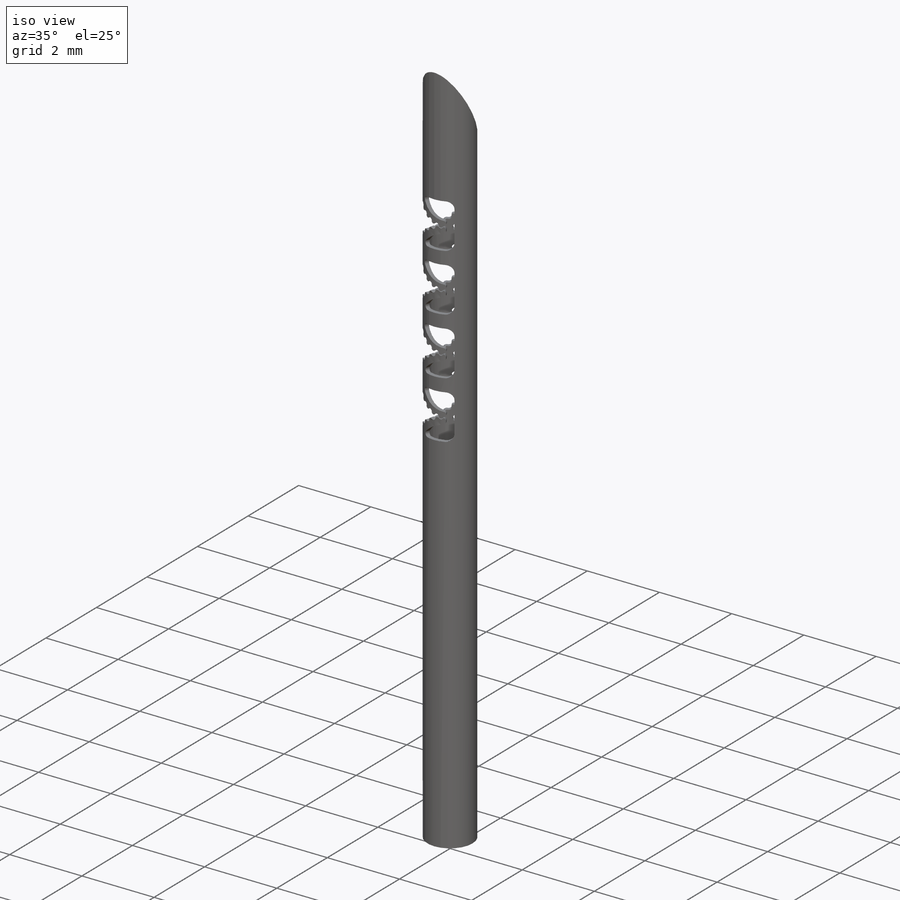
[diagram: iso view]
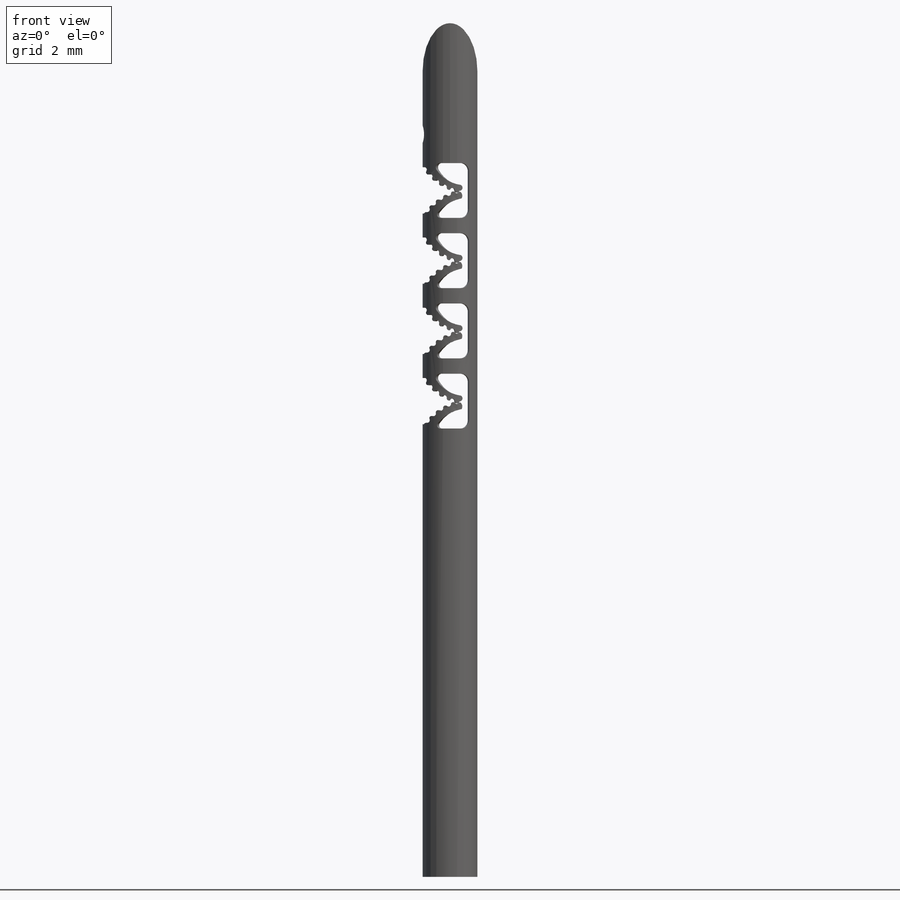
[diagram: front view]
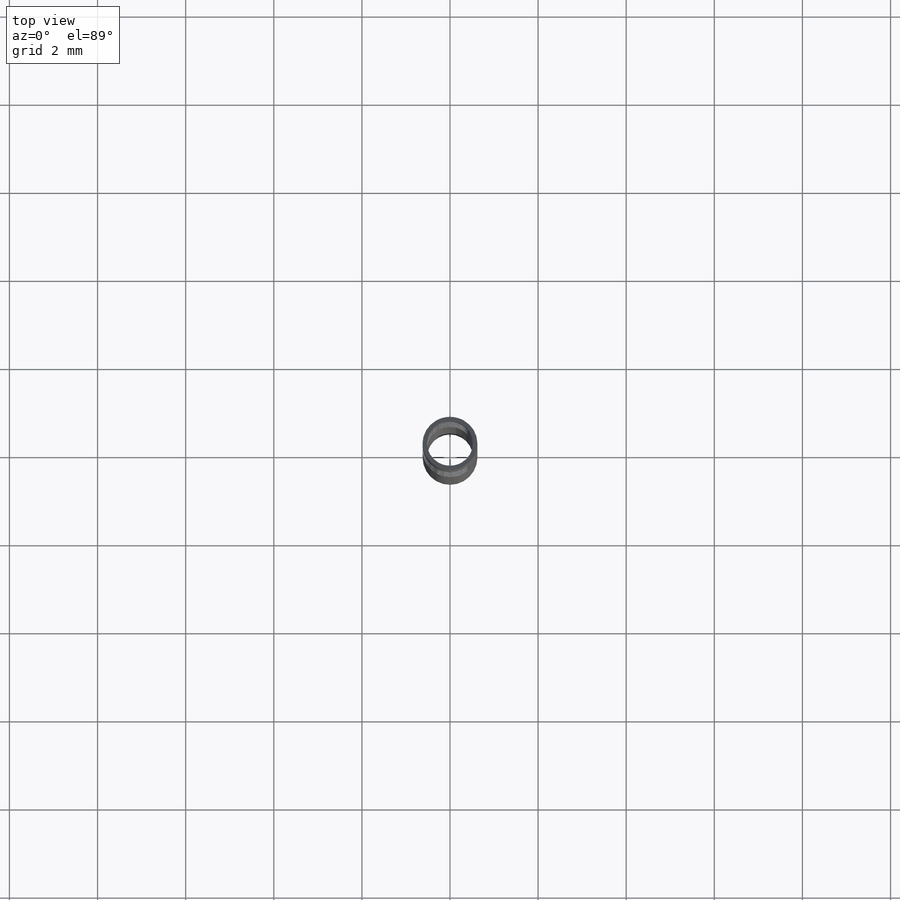
[diagram: top view]
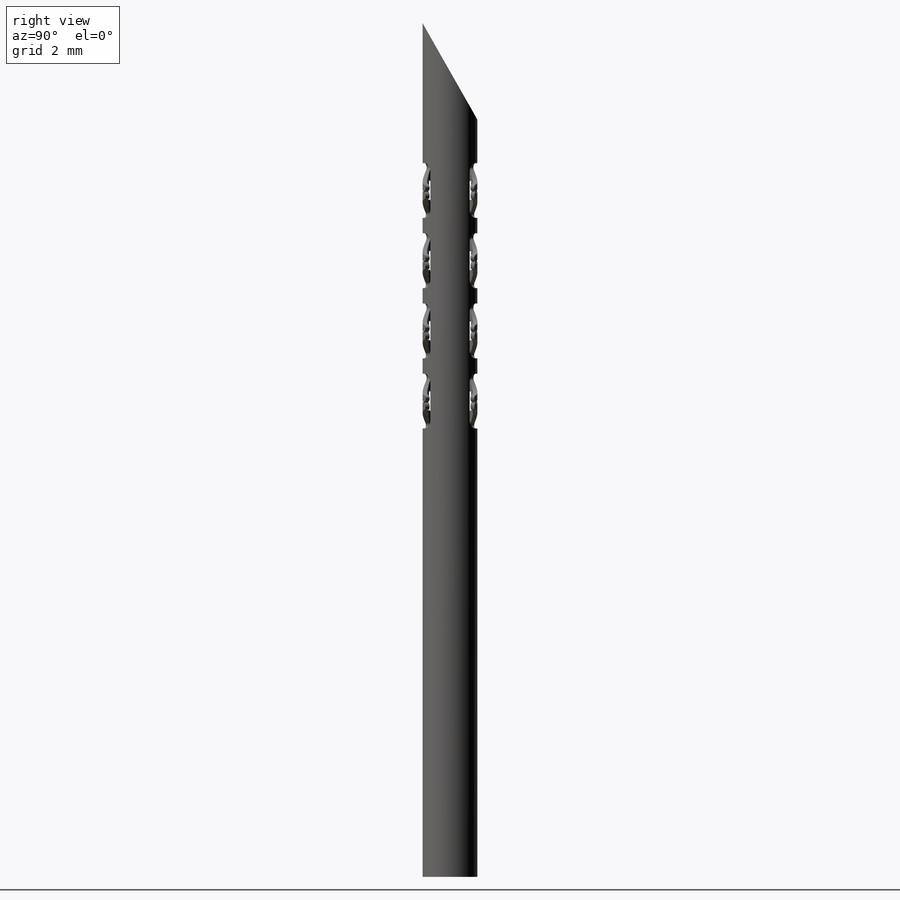
[diagram: right view]
SOLIDWORKS PART (.sldprt)
format: sldprt  version: not decoded by parser v0  size: 2,485,760 bytes
history: native  units: mm
features: sketch x15, cut_extrude x4, plane x2, fillet x2, extrude x2, helix x2, material x1, surface_op x1, mirror x1, pattern_linear x1, boolean_combine x1 (+13 scaffold rows collapsed)
feature tree (45):
  scaffold x13  (default folders/planes/origin — collapsed)
  material  "Material <not specified>"
  sketch  "Sketch1"  dims[D2=1.0412mm D1=0.1014mm]
  sketch  "Sketch7"  dims[c1.D2=~0.096809mm c1.D10=~0.378569mm c1.D5=~0.193326mm c1.D6=1.0152mm c1.D7=0.1mm c1.D8=0.125mm c1.D11=~0.098519mm c1.D12=0.125mm c1.D13=0.05mm c1.D14=~0.440846mm c2.D10=~1.07722mm c2.D8=~0.03125mm c2.D7=~0.03125mm c2.D9=0.05mm c2.D11=~0.174471mm c3.D8=~0.03125mm c3.D10=0.1mm c3.D11=0.125mm c3.D7=~0.03125mm c3.D12=~1.316901mm c4.D7=0.1mm c4.D12=0.125mm c4.D14=0.02mm c5.D12=0.125mm c5.D1=0.622mm c5.D2=0.3732mm c5.D3=~1.155624mm c6.D3=35.0deg c6.D4=0.9952mm c6.D5=0.9952mm c6.D2=~0.307039mm c6.D6=0.7403mm c7.D3=0.622mm c7.D4=~0.17285mm c7.D6=~0.513245mm c7.D2=~0.327975mm c8.D6=~0.023466mm c8.D2=~0.096809mm c9.D6=~0.914157mm c9.D2=0.8983mm c10.D6=1.0152mm c10.D7=1.244mm c10.D8=0.3932mm c10.D9=0.7464mm c10.D10=~0.329476mm c10.D5=0.9952mm c11.D10=~0.640912mm c11.D5=0.3mm c12.D10=0.4464mm c12.D2=0.622mm c12.D3=~0.117308mm c13.D2=0.622mm c13.D3=1.244mm c13.D4=1.0574mm c13.D5=1.244mm c13.D6=0.3732mm c13.D7=~0.807143mm c14.D6=0.1866mm c14.D9=~0.185045mm c14.D11=~0.174471mm c14.D14=~0.00024mm c14.D10=11.65deg c15.D14=~0.000753mm c15.D10=0.035mm c16.D14=~0.008455mm c17.D14=~69.170201deg c17.D7=~0.004967mm c18.D14=~0.014452mm c18.D12=0.125mm c19.D14=~0.020778mm c19.D12=0.125mm c20.D14=~0.03331mm c20.D12=0.035mm c21.D14=~0.156157mm c21.D8=~0.202606mm c21.D9=~1.157039mm c22.D8=0.02mm c22.D9=~0.018182mm c22.D14=~0.000636mm c22.D13=0.05mm c23.D14=~0.185118mm c23.D12=0.125mm c23.D13=5.0]
  surface_op  "Surface-Extrude1"
  sketch  "Sketch8"  dims[D1=1.0412mm]
  sketch  "Sketch9"  dims[c1.D2=~0.096809mm c1.D10=~0.378569mm c1.D5=~0.193326mm c1.D6=1.0152mm c1.D7=0.1mm c1.D8=0.125mm c1.D11=~0.098519mm c1.D12=0.125mm c1.D13=0.05mm c1.D14=~0.440846mm c2.D10=~1.07722mm c2.D8=~0.03125mm c2.D7=~0.03125mm c2.D9=0.05mm c2.D11=~0.174471mm c3.D8=~0.03125mm c3.D10=0.1mm c3.D11=0.125mm c3.D7=~0.03125mm c3.D12=~1.316901mm c4.D7=0.1mm c4.D12=0.125mm c4.D14=0.02mm c5.D12=0.125mm c5.D1=0.622mm c5.D2=0.3732mm c5.D3=~1.155624mm c6.D3=35.0deg c6.D4=0.9952mm c6.D5=0.9952mm c6.D2=~0.307039mm c6.D6=0.7403mm c7.D3=0.622mm c7.D4=~0.17285mm c7.D6=~0.513245mm c7.D2=~0.327975mm c8.D6=~0.023466mm c8.D2=~0.096809mm c9.D6=~0.914157mm c9.D2=0.8983mm c10.D6=1.0152mm c10.D7=1.244mm c10.D8=0.3932mm c10.D9=0.7464mm c10.D10=~0.329476mm c10.D5=0.9952mm c11.D10=~0.640912mm c11.D5=0.3mm c12.D10=0.4464mm c12.D2=0.622mm c12.D3=~0.117308mm c13.D2=0.622mm c13.D3=1.244mm c13.D4=1.0574mm c13.D5=1.244mm c13.D6=0.3732mm c13.D7=~0.807143mm c14.D6=0.1866mm c14.D9=~0.185045mm c14.D11=~0.174471mm c14.D14=~0.00024mm c14.D10=11.65deg c15.D14=~0.000753mm c15.D10=0.035mm c16.D14=~0.008455mm c17.D14=~69.170201deg c17.D7=~0.004967mm c18.D14=~0.014452mm c18.D12=0.125mm c19.D14=~0.020778mm c19.D12=0.125mm c20.D14=~0.03331mm c20.D12=0.035mm c21.D14=~0.156157mm c21.D8=~0.202606mm c21.D9=~1.157039mm c22.D8=0.02mm c22.D9=~0.018182mm c22.D14=~0.000636mm c22.D13=0.05mm c23.D14=~0.185118mm c23.D12=0.125mm c23.D13=5.0 c23.D1=0.1014mm]
  sketch  "Sketch10"
  sketch  "Sketch11"  dims[c1.D4=~1.041228mm c1.D1=0.4354mm c1.D2=~0.503794mm c2.D2=15.0deg c2.D3=~0.520614mm c2.D4=~0.042451mm]
  plane  "Plane1"
  sketch  "Sketch13"
  cut_extrude  "Cut-Extrude1"  [1 undecoded]
  fillet  "Fillet1"  Radius=0.2mm
  fillet  "Fillet2"  Radius=0.2mm
  mirror  "Mirror6"
  sketch  "Sketch14"  dims[D1=~0.163275mm]
  cut_extrude  "Cut-Extrude3"  Depth=10mm
  pattern_linear  "LPattern1"  Count1=4 Count2=1 Spacing1=1.594mm Spacing2=10mm
  sketch  "Sketch15"
  boolean_combine  "Combine1"
  sketch  "Sketch21"
  extrude  "Boss-Extrude1"  Depth=10mm
  sketch  "Sketch22"
  extrude  "Boss-Extrude2"  Depth=3mm
  sketch  "Sketch23"  dims[D1=0.4mm D2=0.75mm]
  cut_extrude  "Cut-Extrude4"  Depth=3mm
  sketch  "Sketch24"  dims[c1.D1=~1.950153mm c2.D1=29.6deg]
  cut_extrude  "Cut-Extrude5"  Depth=3mm
  sketch  "Sketch16"  dims[D1=3.188mm D2=3.188mm]
  sketch  "Sketch20"
  helix  "Helix/Spiral1"  Pitch=3.188mm
  plane  "Plane2"  Offset=2
  helix  "Intersect7"  [1 undecoded]
decode coverage: 18 of 29 modeling features carry decoded parameters
note: ~ marks probable driven/reference dimensions
note: 2 parameter values undecoded
note: suppression state not decoded; provenance and decode notes live in map.json
